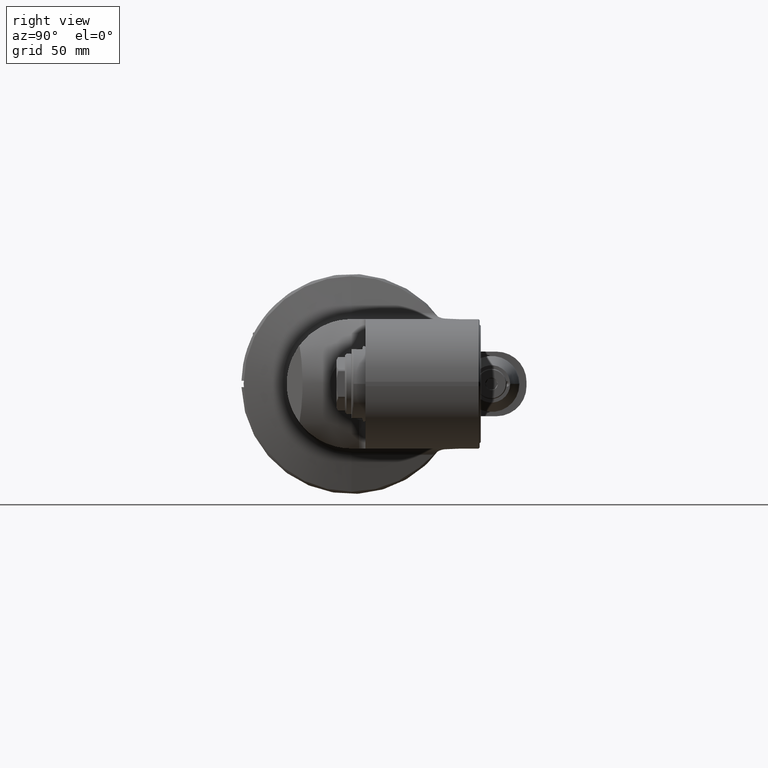
[diagram: clean part render]
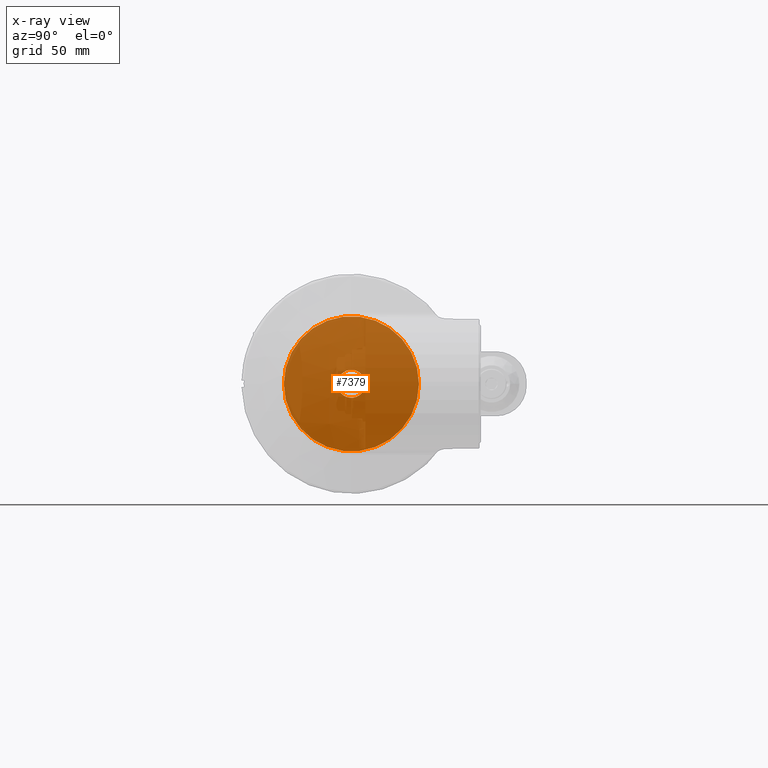
[diagram: x-ray — body ghosted, one internal face saturated and labeled with its STEP entity id]
A machine part, right view, then the same camera in x-ray: the body is ghosted and one INTERNAL B-rep face — a face not visible from any outside direction — is saturated and labeled: STEP entity #7379.
In plain terms, the highlighted planar face has unit normal (1, 0, 0).
Its self-contained STEP definition (entity closure, byte-faithful):
#352=FACE_BOUND('',#1548,.T.);
#553=PLANE('',#8182);
#1056=FACE_OUTER_BOUND('',#1547,.T.);
#1547=EDGE_LOOP('',(#6691));
#1548=EDGE_LOOP('',(#6692));
#2903=CIRCLE('',#8158,31.35);
#2912=CIRCLE('',#8183,6.5);
#3566=VERTEX_POINT('',#43397);
#3589=VERTEX_POINT('',#43494);
#4600=EDGE_CURVE('',#3566,#3566,#2903,.T.);
#4637=EDGE_CURVE('',#3589,#3589,#2912,.T.);
#6691=ORIENTED_EDGE('',*,*,#4600,.T.);
#6692=ORIENTED_EDGE('',*,*,#4637,.T.);
#7379=ADVANCED_FACE('',(#1056,#352),#553,.T.);
#8158=AXIS2_PLACEMENT_3D('',#43399,#10056,#10057);
#8182=AXIS2_PLACEMENT_3D('',#43493,#10122,#10123);
#8183=AXIS2_PLACEMENT_3D('',#43495,#10124,#10125);
#10056=DIRECTION('center_axis',(1.,0.,0.));
#10057=DIRECTION('ref_axis',(0.,1.,-1.400901549979E-9));
#10122=DIRECTION('center_axis',(1.,0.,0.));
#10123=DIRECTION('ref_axis',(0.,1.,-1.400901672444E-9));
#10124=DIRECTION('center_axis',(-1.,0.,0.));
#10125=DIRECTION('ref_axis',(0.,-1.,0.));
#43397=CARTESIAN_POINT('',(-44.0000000000002,31.35,-4.391826744364E-8));
#43399=CARTESIAN_POINT('Origin',(-44.0000000000002,0.,0.));
#43493=CARTESIAN_POINT('Origin',(-44.0000000000002,0.,0.));
#43494=CARTESIAN_POINT('',(-44.0000000000001,6.5,0.));
#43495=CARTESIAN_POINT('Origin',(-44.,0.,0.));